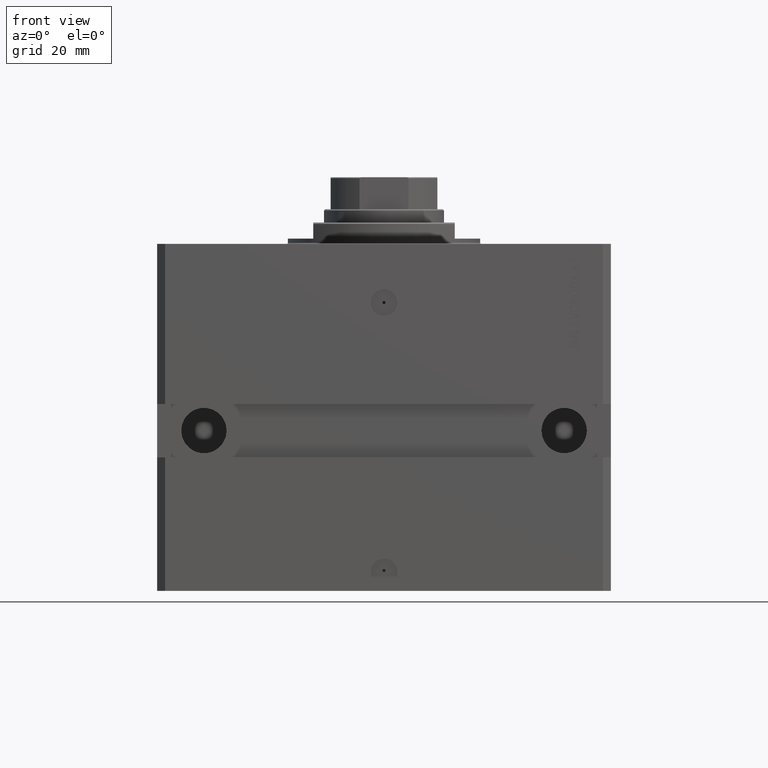
[diagram: clean part render]
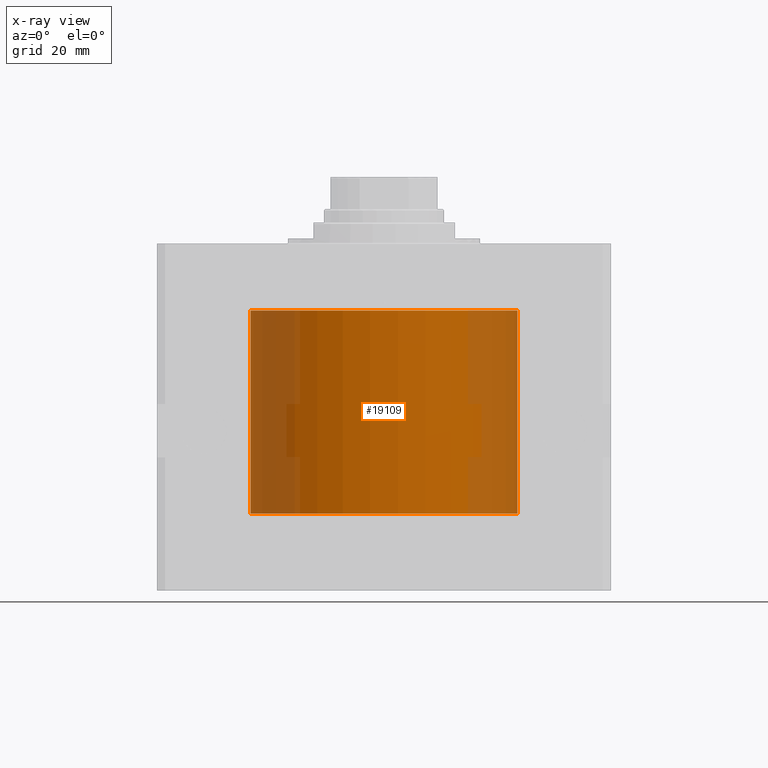
[diagram: x-ray — body ghosted, one internal face saturated and labeled with its STEP entity id]
A machine part, front view, then the same camera in x-ray: the body is ghosted and one INTERNAL B-rep face — a face not visible from any outside direction — is saturated and labeled: STEP entity #19109.
In plain terms, the highlighted cylindrical surface (partial cylindrical patch) has radius 50 mm, axis along (0, 0, 1).
Its self-contained STEP definition (entity closure, byte-faithful):
#1599 = VERTEX_POINT ( 'NONE', #19540 ) ;
#2498 = ORIENTED_EDGE ( 'NONE', *, *, #14036, .F. ) ;
#3184 = AXIS2_PLACEMENT_3D ( 'NONE', #19364, #22544, #45336 ) ;
#4397 = DIRECTION ( 'NONE',  ( 0.000000000000000000, 0.000000000000000000, 1.000000000000000000 ) ) ;
#7609 = EDGE_LOOP ( 'NONE', ( #8147, #36888, #42027, #2498 ) ) ;
#8082 = CARTESIAN_POINT ( 'NONE',  ( -50.00000000000000000, 6.123233995736764507E-15, -24.99999999999999289 ) ) ;
#8147 = ORIENTED_EDGE ( 'NONE', *, *, #9895, .F. ) ;
#9895 = EDGE_CURVE ( 'NONE', #10973, #1599, #23308, .T. ) ;
#10403 = DIRECTION ( 'NONE',  ( -0.000000000000000000, -0.000000000000000000, 1.000000000000000000 ) ) ;
#10464 = CARTESIAN_POINT ( 'NONE',  ( 50.00000000000000000, 0.000000000000000000, -24.99999999999999289 ) ) ;
#10814 = VECTOR ( 'NONE', #10403, 1000.000000000000000 ) ;
#10973 = VERTEX_POINT ( 'NONE', #37952 ) ;
#14036 = EDGE_CURVE ( 'NONE', #1599, #40071, #22131, .T. ) ;
#14058 = CARTESIAN_POINT ( 'NONE',  ( 0.000000000000000000, 0.000000000000000000, -24.99999999999999289 ) ) ;
#17366 = CARTESIAN_POINT ( 'NONE',  ( -50.00000000000000000, 6.123233995736764507E-15, -101.0999999999999943 ) ) ;
#17842 = DIRECTION ( 'NONE',  ( -0.000000000000000000, -0.000000000000000000, 1.000000000000000000 ) ) ;
#19109 = ADVANCED_FACE ( 'NONE', ( #37734 ), #33821, .F. ) ;
#19364 = CARTESIAN_POINT ( 'NONE',  ( 0.000000000000000000, 0.000000000000000000, -101.0999999999999943 ) ) ;
#19421 = EDGE_CURVE ( 'NONE', #10973, #48328, #36705, .T. ) ;
#19540 = CARTESIAN_POINT ( 'NONE',  ( 50.00000000000000000, 0.000000000000000000, -101.0999999999999943 ) ) ;
#19575 = DIRECTION ( 'NONE',  ( 1.000000000000000000, 0.000000000000000000, 0.000000000000000000 ) ) ;
#20944 = AXIS2_PLACEMENT_3D ( 'NONE', #48256, #4397, #19575 ) ;
#22131 = LINE ( 'NONE', #25574, #10814 ) ;
#22544 = DIRECTION ( 'NONE',  ( -0.000000000000000000, -0.000000000000000000, 1.000000000000000000 ) ) ;
#23308 = CIRCLE ( 'NONE', #20944, 50.00000000000000000 ) ;
#25377 = EDGE_CURVE ( 'NONE', #48328, #40071, #46377, .T. ) ;
#25574 = CARTESIAN_POINT ( 'NONE',  ( 50.00000000000000000, 0.000000000000000000, -101.0999999999999943 ) ) ;
#33821 = CYLINDRICAL_SURFACE ( 'NONE', #3184, 50.00000000000000000 ) ;
#35414 = AXIS2_PLACEMENT_3D ( 'NONE', #14058, #46906, #47381 ) ;
#36705 = LINE ( 'NONE', #17366, #45436 ) ;
#36888 = ORIENTED_EDGE ( 'NONE', *, *, #19421, .T. ) ;
#37734 = FACE_OUTER_BOUND ( 'NONE', #7609, .T. ) ;
#37952 = CARTESIAN_POINT ( 'NONE',  ( -50.00000000000000000, 6.123233995736764507E-15, -101.0999999999999943 ) ) ;
#40071 = VERTEX_POINT ( 'NONE', #10464 ) ;
#42027 = ORIENTED_EDGE ( 'NONE', *, *, #25377, .T. ) ;
#45336 = DIRECTION ( 'NONE',  ( 1.000000000000000000, 0.000000000000000000, 0.000000000000000000 ) ) ;
#45436 = VECTOR ( 'NONE', #17842, 1000.000000000000000 ) ;
#46377 = CIRCLE ( 'NONE', #35414, 50.00000000000000000 ) ;
#46906 = DIRECTION ( 'NONE',  ( 0.000000000000000000, 0.000000000000000000, 1.000000000000000000 ) ) ;
#47381 = DIRECTION ( 'NONE',  ( 1.000000000000000000, 0.000000000000000000, 0.000000000000000000 ) ) ;
#48256 = CARTESIAN_POINT ( 'NONE',  ( 0.000000000000000000, 0.000000000000000000, -101.0999999999999943 ) ) ;
#48328 = VERTEX_POINT ( 'NONE', #8082 ) ;